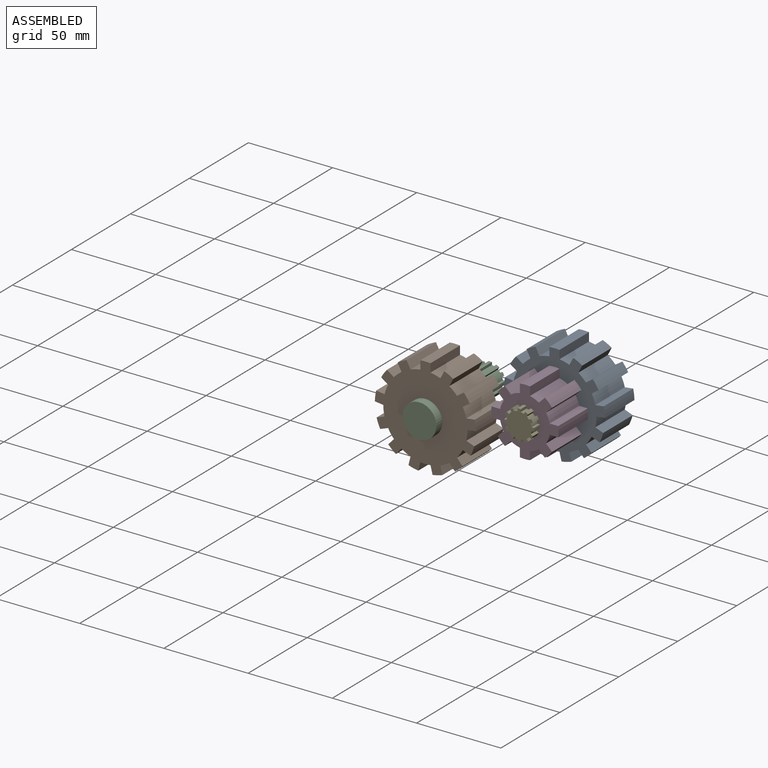
[diagram: assembled view]
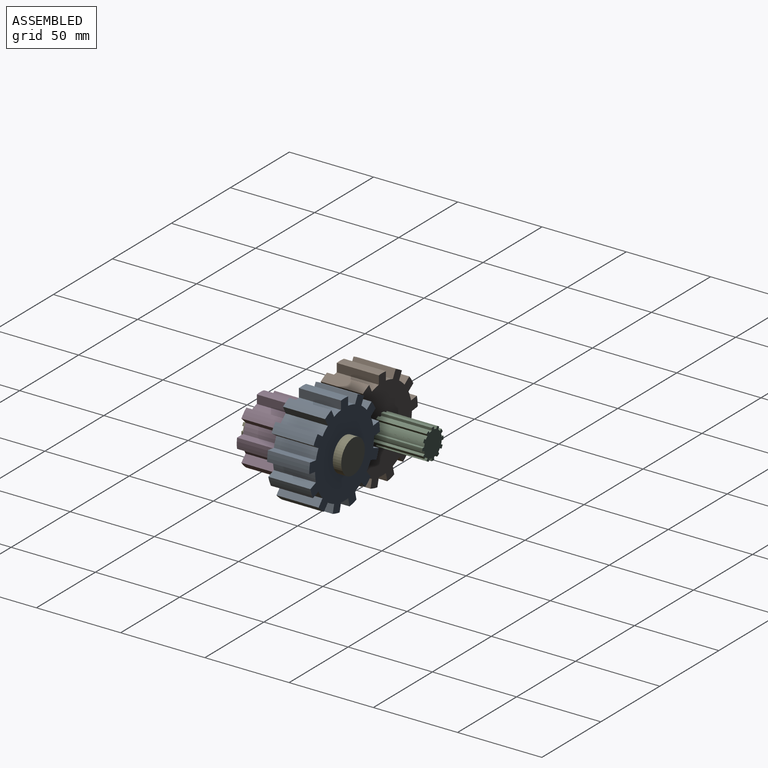
[diagram: assembled view, second angle]
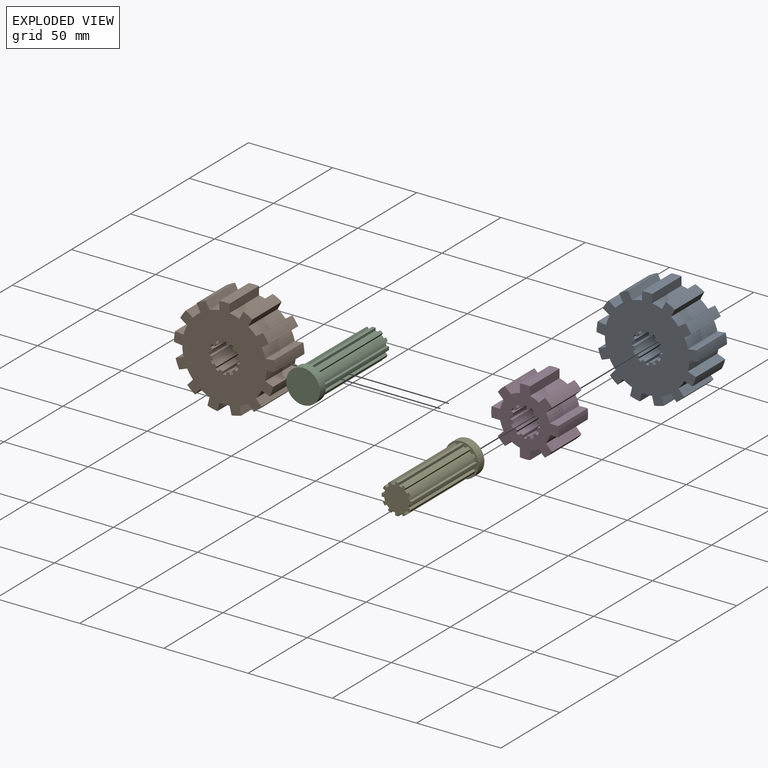
[diagram: exploded view]
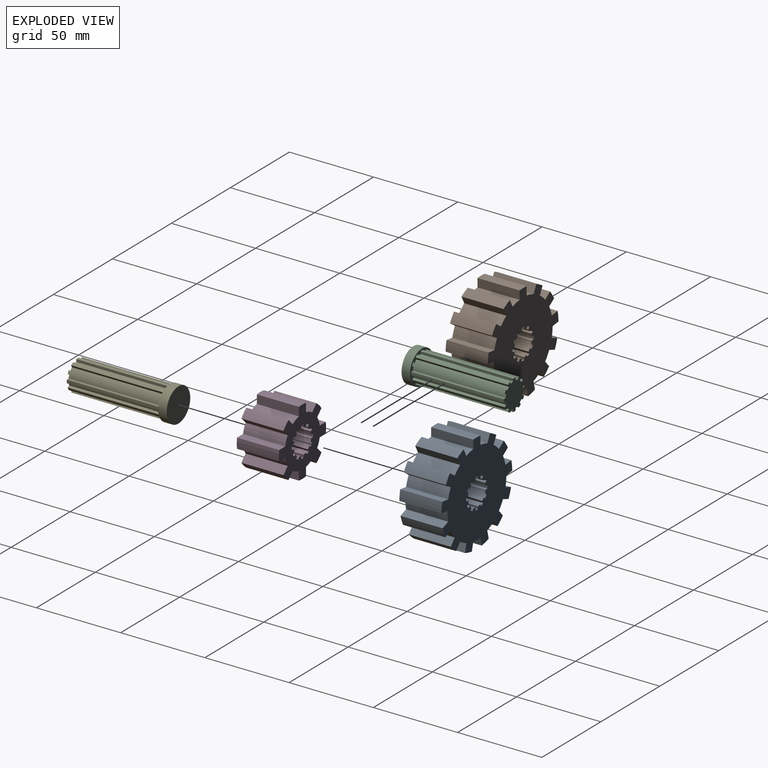
[diagram: exploded view, second angle]
ASSEMBLY  parts=5 mates=3
PART A: 102 faces, bbox 60x25x59.7 mm
  f0: plane 25x3.77mm, normal (-0.75,0,0.66), area 125.8mm2, adj f1,f99,f100,f101
  f1: cylinder r=30mm len=25mm, axis (0,1,0), area 150.3mm2, adj f0,f2,f100,f101
  f2: plane 25x3.77mm, normal (0.75,0,-0.66), area 125.8mm2, adj f1,f3,f100,f101
  f3: cylinder r=25mm len=25mm, axis (0,1,0), area 151.7mm2, adj f2,f4,f100,f101
  f4: plane 25x4.88mm, normal (-0.97,0,0.24), area 125.8mm2, adj f3,f5,f100,f101
  f5: cylinder r=30mm len=25mm, axis (0,1,0), area 150.3mm2, adj f4,f6,f100,f101
  f6: plane 25x4.88mm, normal (0.97,0,-0.24), area 125.8mm2, adj f5,f7,f100,f101
  f7: cylinder r=25mm len=25mm, axis (0,1,0), area 151.7mm2, adj f6,f8,f100,f101
  f8: plane 25x4.88mm, normal (-0.97,0,-0.24), area 125.8mm2, adj f7,f9,f100,f101
  f9: cylinder r=30mm len=25mm, axis (0,1,0), area 150.3mm2, adj f8,f10,f100,f101
  f10: plane 25x4.88mm, normal (0.97,0,0.24), area 125.8mm2, adj f9,f11,f100,f101
  f11: cylinder r=25mm len=25mm, axis (0,1,0), area 151.7mm2, adj f10,f12,f100,f101
  f12: plane 25x3.77mm, normal (-0.75,0,-0.66), area 125.8mm2, adj f11,f13,f100,f101
  f13: cylinder r=30mm len=25mm, axis (0,1,0), area 150.3mm2, adj f12,f14,f100,f101
  f14: plane 25x3.77mm, normal (0.75,0,0.66), area 125.8mm2, adj f13,f15,f100,f101
  f15: cylinder r=25mm len=25mm, axis (0,1,0), area 151.7mm2, adj f14,f16,f100,f101
  f16: plane 25x4.7mm, normal (-0.35,0,-0.94), area 125.8mm2, adj f15,f17,f100,f101
  f17: cylinder r=30mm len=25mm, axis (0,1,0), area 150.3mm2, adj f16,f18,f100,f101
  f18: plane 25x4.7mm, normal (0.35,0,0.94), area 125.8mm2, adj f17,f19,f100,f101
  f19: cylinder r=25mm len=25mm, axis (0,1,0), area 151.7mm2, adj f18,f20,f100,f101
  f20: plane 25x4.99mm, normal (0.12,0,-0.99), area 125.8mm2, adj f19,f21,f100,f101
  f21: cylinder r=30mm len=25mm, axis (0,1,0), area 150.3mm2, adj f20,f22,f100,f101
  f22: plane 25x4.99mm, normal (-0.12,0,0.99), area 125.8mm2, adj f21,f23,f100,f101
  f23: cylinder r=25mm len=25mm, axis (0,1,0), area 151.7mm2, adj f22,f24,f100,f101
  f24: plane 25x4.14mm, normal (0.57,0,-0.82), area 125.8mm2, adj f23,f25,f100,f101
  f25: cylinder r=30mm len=25mm, axis (0,1,0), area 150.3mm2, adj f24,f26,f100,f101
  f26: plane 25x4.14mm, normal (-0.57,0,0.82), area 125.8mm2, adj f25,f27,f100,f101
  f27: cylinder r=25mm len=25mm, axis (0,1,0), area 151.7mm2, adj f26,f28,f100,f101
  f28: plane 25x4.45mm, normal (0.89,0,-0.46), area 125.8mm2, adj f27,f29,f100,f101
  f29: cylinder r=30mm len=25mm, axis (0,1,0), area 150.3mm2, adj f28,f30,f100,f101
  f30: plane 25x4.45mm, normal (-0.89,0,0.46), area 125.8mm2, adj f29,f31,f100,f101
  f31: cylinder r=25mm len=25mm, axis (0,1,0), area 151.7mm2, adj f30,f32,f100,f101
  f32: plane 25x5.03mm, normal (1,0,0), area 125.8mm2, adj f31,f33,f100,f101
  f33: cylinder r=30mm len=25mm, axis (0,1,0), area 150.3mm2, adj f32,f34,f100,f101
  f34: plane 25x5.03mm, normal (-1,0,0), area 125.8mm2, adj f33,f35,f100,f101
  f35: cylinder r=25mm len=25mm, axis (0,1,0), area 151.7mm2, adj f34,f36,f100,f101
  f36: plane 25x4.45mm, normal (0.89,0,0.46), area 125.8mm2, adj f35,f37,f100,f101
  f37: cylinder r=30mm len=25mm, axis (0,1,0), area 150.3mm2, adj f36,f38,f100,f101
  f38: plane 25x4.45mm, normal (-0.89,0,-0.46), area 125.8mm2, adj f37,f39,f100,f101
  f39: cylinder r=25mm len=25mm, axis (0,1,0), area 151.7mm2, adj f38,f40,f100,f101
  f40: plane 25x4.14mm, normal (0.57,0,0.82), area 125.8mm2, adj f39,f41,f100,f101
  f41: cylinder r=30mm len=25mm, axis (0,1,0), area 150.3mm2, adj f40,f42,f100,f101
  f42: plane 25x4.14mm, normal (-0.57,0,-0.82), area 125.8mm2, adj f41,f43,f100,f101
  f43: cylinder r=25mm len=25mm, axis (0,1,0), area 151.7mm2, adj f42,f44,f100,f101
  f44: plane 25x4.99mm, normal (0.12,0,0.99), area 125.8mm2, adj f43,f45,f100,f101
  f45: cylinder r=30mm len=25mm, axis (0,1,0), area 150.3mm2, adj f44,f46,f100,f101
  f46: plane 25x4.99mm, normal (-0.12,0,-0.99), area 125.8mm2, adj f45,f47,f100,f101
  f47: cylinder r=25mm len=25mm, axis (0,1,0), area 151.7mm2, adj f46,f48,f100,f101
  f48: plane 25x4.7mm, normal (-0.35,0,0.94), area 125.8mm2, adj f47,f49,f100,f101
  f49: cylinder r=30mm len=25mm, axis (0,1,0), area 150.3mm2, adj f48,f50,f100,f101
  f50: plane 25x4.7mm, normal (0.35,0,-0.94), area 125.8mm2, adj f49,f99,f100,f101
  f51: cylinder r=7.5mm len=25mm, axis (0,1,0), area 48mm2, adj f52,f98,f100,f101
  f52: plane 25x1.31mm, normal (-0.87,0,-0.5), area 37.8mm2, adj f51,f53,f100,f101
  f53: cylinder r=9mm len=25mm, axis (0,1,0), area 50.1mm2, adj f52,f54,f100,f101
  f54: plane 25x1.31mm, normal (0.87,0,0.5), area 37.8mm2, adj f53,f55,f100,f101
  f55: cylinder r=7.5mm len=25mm, axis (0,1,0), area 48mm2, adj f54,f56,f100,f101
  f56: plane 25x1.51mm, normal (-1,0,0), area 37.8mm2, adj f55,f57,f100,f101
  f57: cylinder r=9mm len=25mm, axis (0,1,0), area 50.1mm2, adj f56,f58,f100,f101
  f58: plane 25x1.51mm, normal (1,0,0), area 37.8mm2, adj f57,f59,f100,f101
  f59: cylinder r=7.5mm len=25mm, axis (0,1,0), area 48mm2, adj f58,f60,f100,f101
  f60: plane 25x1.31mm, normal (-0.87,0,0.5), area 37.8mm2, adj f59,f61,f100,f101
  f61: cylinder r=9mm len=25mm, axis (0,1,0), area 50.1mm2, adj f60,f62,f100,f101
  f62: plane 25x1.31mm, normal (0.87,0,-0.5), area 37.8mm2, adj f61,f63,f100,f101
  f63: cylinder r=7.5mm len=25mm, axis (0,1,0), area 48mm2, adj f62,f64,f100,f101
  f64: plane 25x1.31mm, normal (-0.5,0,0.87), area 37.8mm2, adj f63,f65,f100,f101
  f65: cylinder r=9mm len=25mm, axis (0,1,0), area 50.1mm2, adj f64,f66,f100,f101
  f66: plane 25x1.31mm, normal (0.5,0,-0.87), area 37.8mm2, adj f65,f67,f100,f101
  f67: cylinder r=7.5mm len=25mm, axis (0,1,0), area 48mm2, adj f66,f68,f100,f101
  f68: plane 25x1.51mm, normal (0,0,1), area 37.8mm2, adj f67,f69,f100,f101
  f69: cylinder r=9mm len=25mm, axis (0,1,0), area 50.1mm2, adj f68,f70,f100,f101
  f70: plane 25x1.51mm, normal (0,0,-1), area 37.8mm2, adj f69,f71,f100,f101
  f71: cylinder r=7.5mm len=25mm, axis (0,1,0), area 48mm2, adj f70,f72,f100,f101
  f72: plane 25x1.31mm, normal (0.5,0,0.87), area 37.8mm2, adj f71,f73,f100,f101
  f73: cylinder r=9mm len=25mm, axis (0,1,0), area 50.1mm2, adj f72,f74,f100,f101
  f74: plane 25x1.31mm, normal (-0.5,0,-0.87), area 37.8mm2, adj f73,f75,f100,f101
  f75: cylinder r=7.5mm len=25mm, axis (0,1,0), area 48mm2, adj f74,f76,f100,f101
  f76: plane 25x1.31mm, normal (0.87,0,0.5), area 37.8mm2, adj f75,f77,f100,f101
  f77: cylinder r=9mm len=25mm, axis (0,1,0), area 50.1mm2, adj f76,f78,f100,f101
  f78: plane 25x1.31mm, normal (-0.87,0,-0.5), area 37.8mm2, adj f77,f79,f100,f101
  f79: cylinder r=7.5mm len=25mm, axis (0,1,0), area 48mm2, adj f78,f80,f100,f101
  f80: plane 25x1.51mm, normal (1,0,0), area 37.8mm2, adj f79,f81,f100,f101
  f81: cylinder r=9mm len=25mm, axis (0,1,0), area 50.1mm2, adj f80,f82,f100,f101
  f82: plane 25x1.51mm, normal (-1,0,0), area 37.8mm2, adj f81,f83,f100,f101
  f83: cylinder r=7.5mm len=25mm, axis (0,1,0), area 48mm2, adj f82,f84,f100,f101
  f84: plane 25x1.31mm, normal (0.87,0,-0.5), area 37.8mm2, adj f83,f85,f100,f101
  f85: cylinder r=9mm len=25mm, axis (0,1,0), area 50.1mm2, adj f84,f86,f100,f101
  f86: plane 25x1.31mm, normal (-0.87,0,0.5), area 37.8mm2, adj f85,f87,f100,f101
  f87: cylinder r=7.5mm len=25mm, axis (0,1,0), area 48mm2, adj f86,f88,f100,f101
  f88: plane 25x1.31mm, normal (0.5,0,-0.87), area 37.8mm2, adj f87,f89,f100,f101
  f89: cylinder r=9mm len=25mm, axis (0,1,0), area 50.1mm2, adj f88,f90,f100,f101
  f90: plane 25x1.31mm, normal (-0.5,0,0.87), area 37.8mm2, adj f89,f91,f100,f101
  f91: cylinder r=7.5mm len=25mm, axis (0,1,0), area 48mm2, adj f90,f92,f100,f101
  f92: plane 25x1.51mm, normal (0,0,-1), area 37.8mm2, adj f91,f93,f100,f101
  f93: cylinder r=9mm len=25mm, axis (0,1,0), area 50.1mm2, adj f92,f94,f100,f101
  f94: plane 25x1.51mm, normal (0,0,1), area 37.8mm2, adj f93,f95,f100,f101
  f95: cylinder r=7.5mm len=25mm, axis (0,1,0), area 48mm2, adj f94,f96,f100,f101
  f96: plane 25x1.31mm, normal (-0.5,0,-0.87), area 37.8mm2, adj f95,f97,f100,f101
  f97: cylinder r=9mm len=25mm, axis (0,1,0), area 50.1mm2, adj f96,f98,f100,f101
  f98: plane 25x1.31mm, normal (0.5,0,0.87), area 37.8mm2, adj f51,f97,f100,f101
  f99: cylinder r=25mm len=25mm, axis (0,1,0), area 151.7mm2, adj f0,f50,f100,f101
  f100: plane 59.99x59.7mm, normal (0,-1,0), area 2141.5mm2, adj f0,f1,f2,f3,f4,f5,f6,f7
  f101: plane 59.99x59.7mm, normal (0,1,0), area 2141.5mm2, adj f0,f1,f2,f3,f4,f5,f6,f7
PART B: same geometry as A
PART C: 52 faces, bbox 20x60x20 mm
  f0: plane 55x1.51mm, normal (-1,0,0), area 83.1mm2, adj f1,f47,f48,f50
  f1: cylinder r=7.5mm len=55mm, axis (0,1,0), area 105.7mm2, adj f0,f2,f48,f50
  f2: plane 55x1.31mm, normal (0.87,0,0.5), area 83.1mm2, adj f1,f3,f48,f50
  f3: cylinder r=9mm len=55mm, axis (0,1,0), area 110.2mm2, adj f2,f4,f48,f50
  f4: plane 55x1.31mm, normal (-0.87,0,-0.5), area 83.1mm2, adj f3,f5,f48,f50
  f5: cylinder r=7.5mm len=55mm, axis (0,1,0), area 105.7mm2, adj f4,f6,f48,f50
  f6: plane 55x1.31mm, normal (0.5,0,0.87), area 83.1mm2, adj f5,f7,f48,f50
  f7: cylinder r=9mm len=55mm, axis (0,1,0), area 110.2mm2, adj f6,f8,f48,f50
  f8: plane 55x1.31mm, normal (-0.5,0,-0.87), area 83.1mm2, adj f7,f9,f48,f50
  f9: cylinder r=7.5mm len=55mm, axis (0,1,0), area 105.7mm2, adj f8,f10,f48,f50
  f10: plane 55x1.51mm, normal (0,0,1), area 83.1mm2, adj f9,f11,f48,f50
  f11: cylinder r=9mm len=55mm, axis (0,1,0), area 110.2mm2, adj f10,f12,f48,f50
  f12: plane 55x1.51mm, normal (0,0,-1), area 83.1mm2, adj f11,f13,f48,f50
  f13: cylinder r=7.5mm len=55mm, axis (0,1,0), area 105.7mm2, adj f12,f14,f48,f50
  f14: plane 55x1.31mm, normal (-0.5,0,0.87), area 83.1mm2, adj f13,f15,f48,f50
  f15: cylinder r=9mm len=55mm, axis (0,1,0), area 110.2mm2, adj f14,f16,f48,f50
  f16: plane 55x1.31mm, normal (0.5,0,-0.87), area 83.1mm2, adj f15,f17,f48,f50
  f17: cylinder r=7.5mm len=55mm, axis (0,1,0), area 105.7mm2, adj f16,f18,f48,f50
  f18: plane 55x1.31mm, normal (-0.87,0,0.5), area 83.1mm2, adj f17,f19,f48,f50
  f19: cylinder r=9mm len=55mm, axis (0,1,0), area 110.2mm2, adj f18,f20,f48,f50
  f20: plane 55x1.31mm, normal (0.87,0,-0.5), area 83.1mm2, adj f19,f21,f48,f50
  f21: cylinder r=7.5mm len=55mm, axis (0,1,0), area 105.7mm2, adj f20,f22,f48,f50
  f22: plane 55x1.51mm, normal (-1,0,0), area 83.1mm2, adj f21,f23,f48,f50
  f23: cylinder r=9mm len=55mm, axis (0,1,0), area 110.2mm2, adj f22,f24,f48,f50
  f24: plane 55x1.51mm, normal (1,0,0), area 83.1mm2, adj f23,f25,f48,f50
  f25: cylinder r=7.5mm len=55mm, axis (0,1,0), area 105.7mm2, adj f24,f26,f48,f50
  f26: plane 55x1.31mm, normal (-0.87,0,-0.5), area 83.1mm2, adj f25,f27,f48,f50
  f27: cylinder r=9mm len=55mm, axis (0,1,0), area 110.2mm2, adj f26,f28,f48,f50
  f28: plane 55x1.31mm, normal (0.87,0,0.5), area 83.1mm2, adj f27,f29,f48,f50
  f29: cylinder r=7.5mm len=55mm, axis (0,1,0), area 105.7mm2, adj f28,f30,f48,f50
  f30: plane 55x1.31mm, normal (-0.5,0,-0.87), area 83.1mm2, adj f29,f31,f48,f50
  f31: cylinder r=9mm len=55mm, axis (0,1,0), area 110.2mm2, adj f30,f32,f48,f50
  f32: plane 55x1.31mm, normal (0.5,0,0.87), area 83.1mm2, adj f31,f33,f48,f50
  f33: cylinder r=7.5mm len=55mm, axis (0,1,0), area 105.7mm2, adj f32,f34,f48,f50
  f34: plane 55x1.51mm, normal (0,0,-1), area 83.1mm2, adj f33,f35,f48,f50
  f35: cylinder r=9mm len=55mm, axis (0,1,0), area 110.2mm2, adj f34,f36,f48,f50
  f36: plane 55x1.51mm, normal (0,0,1), area 83.1mm2, adj f35,f37,f48,f50
  f37: cylinder r=7.5mm len=55mm, axis (0,1,0), area 105.7mm2, adj f36,f38,f48,f50
  f38: plane 55x1.31mm, normal (0.5,0,-0.87), area 83.1mm2, adj f37,f39,f48,f50
  f39: cylinder r=9mm len=55mm, axis (0,1,0), area 110.2mm2, adj f38,f40,f48,f50
  f40: plane 55x1.31mm, normal (-0.5,0,0.87), area 83.1mm2, adj f39,f41,f48,f50
  f41: cylinder r=7.5mm len=55mm, axis (0,1,0), area 105.7mm2, adj f40,f42,f48,f50
  f42: plane 55x1.31mm, normal (0.87,0,-0.5), area 83.1mm2, adj f41,f43,f48,f50
  f43: cylinder r=9mm len=55mm, axis (0,1,0), area 110.2mm2, adj f42,f44,f48,f50
  f44: plane 55x1.31mm, normal (-0.87,0,0.5), area 83.1mm2, adj f43,f45,f48,f50
  f45: cylinder r=7.5mm len=55mm, axis (0,1,0), area 105.7mm2, adj f44,f46,f48,f50
  f46: plane 55x1.51mm, normal (1,0,0), area 83.1mm2, adj f45,f47,f48,f50
  f47: cylinder r=9mm len=55mm, axis (0,1,0), area 110.2mm2, adj f0,f46,f48,f50
  f48: plane 18x18mm, normal (0,-1,0), area 212.8mm2, adj f0,f1,f2,f3,f4,f5,f6,f7
  f49: cylinder r=10mm len=20mm, axis (0,1,0), area 314.2mm2, adj f50,f51
  f50: plane 20x20mm, normal (0,-1,0), area 101.4mm2, adj f0,f1,f2,f3,f4,f5,f6,f7
  f51: plane 20x20mm, normal (0,1,0), area 314.2mm2, adj f49
PART D: 82 faces, bbox 40x25x40 mm
  f0: cylinder r=15mm len=25mm, axis (0,1,0), area 143.5mm2, adj f1,f31,f32,f33
  f1: plane 25x3.59mm, normal (0.71,0,-0.71), area 126.9mm2, adj f0,f2,f32,f33
  f2: cylinder r=20mm len=25mm, axis (0,1,0), area 150.6mm2, adj f1,f3,f32,f33
  f3: plane 25x3.59mm, normal (-0.71,0,0.71), area 126.9mm2, adj f2,f4,f32,f33
  f4: cylinder r=15mm len=25mm, axis (0,1,0), area 143.5mm2, adj f3,f5,f32,f33
  f5: plane 25x5.08mm, normal (1,0,0), area 126.9mm2, adj f4,f6,f32,f33
  f6: cylinder r=20mm len=25mm, axis (0,1,0), area 150.6mm2, adj f5,f7,f32,f33
  f7: plane 25x5.08mm, normal (-1,0,0), area 126.9mm2, adj f6,f8,f32,f33
  f8: cylinder r=15mm len=25mm, axis (0,1,0), area 143.5mm2, adj f7,f9,f32,f33
  f9: plane 25x3.59mm, normal (0.71,0,0.71), area 126.9mm2, adj f8,f10,f32,f33
  f10: cylinder r=20mm len=25mm, axis (0,1,0), area 150.6mm2, adj f9,f11,f32,f33
  f11: plane 25x3.59mm, normal (-0.71,0,-0.71), area 126.9mm2, adj f10,f12,f32,f33
  f12: cylinder r=15mm len=25mm, axis (0,1,0), area 143.5mm2, adj f11,f13,f32,f33
  f13: plane 25x5.08mm, normal (0,0,1), area 126.9mm2, adj f12,f14,f32,f33
  f14: cylinder r=20mm len=25mm, axis (0,1,0), area 150.6mm2, adj f13,f15,f32,f33
  f15: plane 25x5.08mm, normal (0,0,-1), area 126.9mm2, adj f14,f16,f32,f33
  f16: cylinder r=15mm len=25mm, axis (0,1,0), area 143.5mm2, adj f15,f17,f32,f33
  f17: plane 25x3.59mm, normal (-0.71,0,0.71), area 126.9mm2, adj f16,f18,f32,f33
  f18: cylinder r=20mm len=25mm, axis (0,1,0), area 150.6mm2, adj f17,f19,f32,f33
  f19: plane 25x3.59mm, normal (0.71,0,-0.71), area 126.9mm2, adj f18,f20,f32,f33
  f20: cylinder r=15mm len=25mm, axis (0,1,0), area 143.5mm2, adj f19,f21,f32,f33
  f21: plane 25x5.08mm, normal (-1,0,0), area 126.9mm2, adj f20,f22,f32,f33
  f22: cylinder r=20mm len=25mm, axis (0,1,0), area 150.6mm2, adj f21,f23,f32,f33
  f23: plane 25x5.08mm, normal (1,0,0), area 126.9mm2, adj f22,f24,f32,f33
  f24: cylinder r=15mm len=25mm, axis (0,1,0), area 143.5mm2, adj f23,f25,f32,f33
  f25: plane 25x3.59mm, normal (-0.71,0,-0.71), area 126.9mm2, adj f24,f26,f32,f33
  f26: cylinder r=20mm len=25mm, axis (0,1,0), area 150.6mm2, adj f25,f27,f32,f33
  f27: plane 25x3.59mm, normal (0.71,0,0.71), area 126.9mm2, adj f26,f28,f32,f33
  f28: cylinder r=15mm len=25mm, axis (0,1,0), area 143.5mm2, adj f27,f29,f32,f33
  f29: plane 25x5.08mm, normal (0,0,-1), area 126.9mm2, adj f28,f30,f32,f33
  f30: cylinder r=20mm len=25mm, axis (0,1,0), area 150.6mm2, adj f29,f31,f32,f33
  f31: plane 25x5.08mm, normal (0,0,1), area 126.9mm2, adj f0,f30,f32,f33
  f32: plane 40x40mm, normal (0,-1,0), area 735.3mm2, adj f0,f1,f2,f3,f4,f5,f6,f7
  f33: plane 40x40mm, normal (0,1,0), area 735.3mm2, adj f0,f1,f2,f3,f4,f5,f6,f7
  f34: plane 25x1.31mm, normal (-0.87,0,-0.5), area 37.8mm2, adj f32,f33,f35,f81
  f35: cylinder r=7.5mm len=25mm, axis (0,1,0), area 48mm2, adj f32,f33,f34,f36
  f36: plane 25x1.31mm, normal (0.5,0,0.87), area 37.8mm2, adj f32,f33,f35,f37
  f37: cylinder r=9mm len=25mm, axis (0,1,0), area 50.1mm2, adj f32,f33,f36,f38
  f38: plane 25x1.31mm, normal (-0.5,0,-0.87), area 37.8mm2, adj f32,f33,f37,f39
  f39: cylinder r=7.5mm len=25mm, axis (0,1,0), area 48mm2, adj f32,f33,f38,f40
  f40: plane 25x1.51mm, normal (0,0,1), area 37.8mm2, adj f32,f33,f39,f41
  f41: cylinder r=9mm len=25mm, axis (0,1,0), area 50.1mm2, adj f32,f33,f40,f42
  f42: plane 25x1.51mm, normal (0,0,-1), area 37.8mm2, adj f32,f33,f41,f43
  f43: cylinder r=7.5mm len=25mm, axis (0,1,0), area 48mm2, adj f32,f33,f42,f44
  f44: plane 25x1.31mm, normal (-0.5,0,0.87), area 37.8mm2, adj f32,f33,f43,f45
  f45: cylinder r=9mm len=25mm, axis (0,1,0), area 50.1mm2, adj f32,f33,f44,f46
  f46: plane 25x1.31mm, normal (0.5,0,-0.87), area 37.8mm2, adj f32,f33,f45,f47
  f47: cylinder r=7.5mm len=25mm, axis (0,1,0), area 48mm2, adj f32,f33,f46,f48
  f48: plane 25x1.31mm, normal (-0.87,0,0.5), area 37.8mm2, adj f32,f33,f47,f49
  f49: cylinder r=9mm len=25mm, axis (0,1,0), area 50.1mm2, adj f32,f33,f48,f50
  f50: plane 25x1.31mm, normal (0.87,0,-0.5), area 37.8mm2, adj f32,f33,f49,f51
  f51: cylinder r=7.5mm len=25mm, axis (0,1,0), area 48mm2, adj f32,f33,f50,f52
  f52: plane 25x1.51mm, normal (-1,0,0), area 37.8mm2, adj f32,f33,f51,f53
  f53: cylinder r=9mm len=25mm, axis (0,1,0), area 50.1mm2, adj f32,f33,f52,f54
  f54: plane 25x1.51mm, normal (1,0,0), area 37.8mm2, adj f32,f33,f53,f55
  f55: cylinder r=7.5mm len=25mm, axis (0,1,0), area 48mm2, adj f32,f33,f54,f56
  f56: plane 25x1.31mm, normal (-0.87,0,-0.5), area 37.8mm2, adj f32,f33,f55,f57
  f57: cylinder r=9mm len=25mm, axis (0,1,0), area 50.1mm2, adj f32,f33,f56,f58
  f58: plane 25x1.31mm, normal (0.87,0,0.5), area 37.8mm2, adj f32,f33,f57,f59
  f59: cylinder r=7.5mm len=25mm, axis (0,1,0), area 48mm2, adj f32,f33,f58,f60
  f60: plane 25x1.31mm, normal (-0.5,0,-0.87), area 37.8mm2, adj f32,f33,f59,f61
  f61: cylinder r=9mm len=25mm, axis (0,1,0), area 50.1mm2, adj f32,f33,f60,f62
  f62: plane 25x1.31mm, normal (0.5,0,0.87), area 37.8mm2, adj f32,f33,f61,f63
  f63: cylinder r=7.5mm len=25mm, axis (0,1,0), area 48mm2, adj f32,f33,f62,f64
  f64: plane 25x1.51mm, normal (0,0,-1), area 37.8mm2, adj f32,f33,f63,f65
  f65: cylinder r=9mm len=25mm, axis (0,1,0), area 50.1mm2, adj f32,f33,f64,f66
  f66: plane 25x1.51mm, normal (0,0,1), area 37.8mm2, adj f32,f33,f65,f67
  f67: cylinder r=7.5mm len=25mm, axis (0,1,0), area 48mm2, adj f32,f33,f66,f68
  f68: plane 25x1.31mm, normal (0.5,0,-0.87), area 37.8mm2, adj f32,f33,f67,f69
  f69: cylinder r=9mm len=25mm, axis (0,1,0), area 50.1mm2, adj f32,f33,f68,f70
  f70: plane 25x1.31mm, normal (-0.5,0,0.87), area 37.8mm2, adj f32,f33,f69,f71
  f71: cylinder r=7.5mm len=25mm, axis (0,1,0), area 48mm2, adj f32,f33,f70,f72
  f72: plane 25x1.31mm, normal (0.87,0,-0.5), area 37.8mm2, adj f32,f33,f71,f73
  f73: cylinder r=9mm len=25mm, axis (0,1,0), area 50.1mm2, adj f32,f33,f72,f74
  f74: plane 25x1.31mm, normal (-0.87,0,0.5), area 37.8mm2, adj f32,f33,f73,f75
  f75: cylinder r=7.5mm len=25mm, axis (0,1,0), area 48mm2, adj f32,f33,f74,f76
  f76: plane 25x1.51mm, normal (1,0,0), area 37.8mm2, adj f32,f33,f75,f77
  f77: cylinder r=9mm len=25mm, axis (0,1,0), area 50.1mm2, adj f32,f33,f76,f78
  f78: plane 25x1.51mm, normal (-1,0,0), area 37.8mm2, adj f32,f33,f77,f79
  f79: cylinder r=7.5mm len=25mm, axis (0,1,0), area 48mm2, adj f32,f33,f78,f80
  f80: plane 25x1.31mm, normal (0.87,0,0.5), area 37.8mm2, adj f32,f33,f79,f81
  f81: cylinder r=9mm len=25mm, axis (0,1,0), area 50.1mm2, adj f32,f33,f34,f80
PART E: same geometry as C
PLACE A t=(3.16,30.12,6.8)mm
PLACE B rot(axis=(0,0,-1),180deg) t=(-58.75,-15.8,-8.94)mm
PLACE C rot(axis=(0,0,-1),180deg) t=(-58.75,-20.8,-8.94)mm
PLACE D t=(3.16,5.12,6.8)mm
PLACE E t=(3.16,35.12,6.8)mm
MATE fastened A.f1 <-> E.f1  axis (0,1,0) through (3.16,30.12,6.8)mm
MATE fastened D.f0 <-> A.f1  axis (0,1,0) through (3.16,5.12,6.8)mm
MATE fastened B.f1 <-> C.f1  axis (0,-1,0) through (-58.75,-15.8,-8.94)mm
